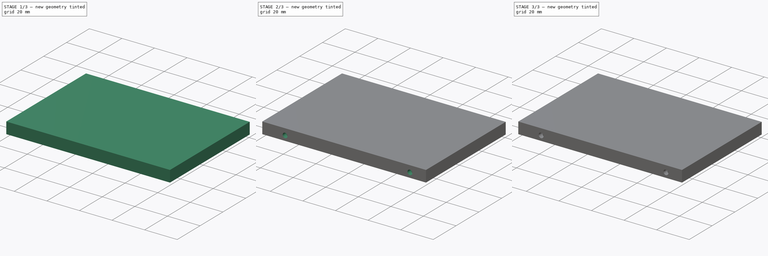
[diagram: build sequence overview — one tinted view per stage of 3, left to right]
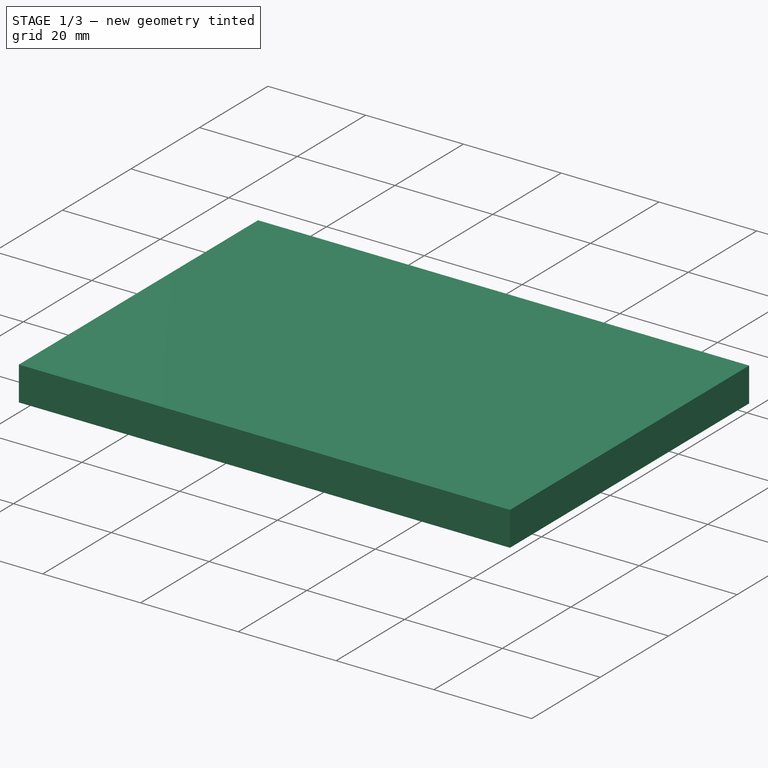
[diagram: stage 1 of 3 — iso view after this stage's code; geometry added in this stage tinted green]
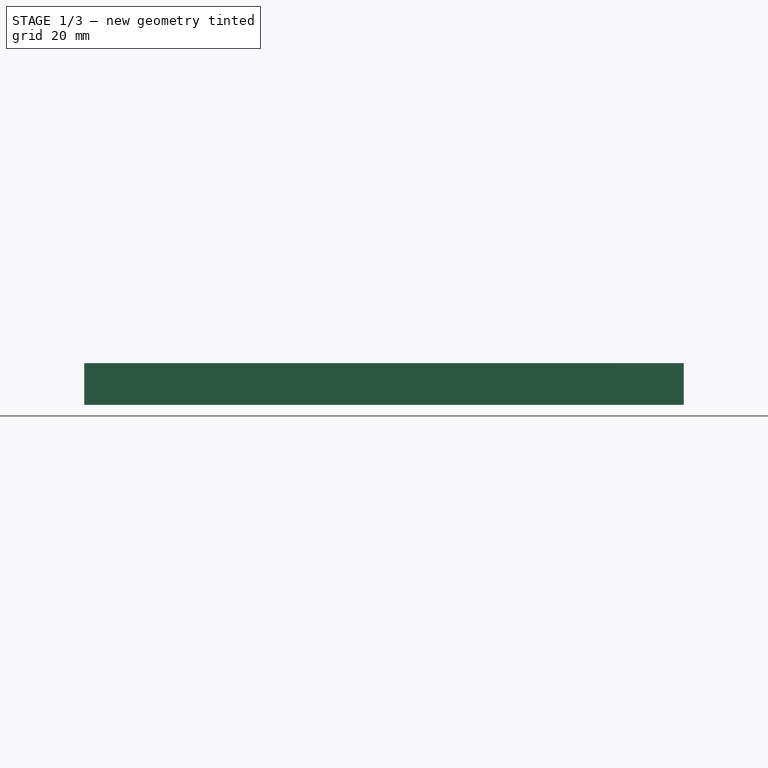
[diagram: stage 1 of 3 — front view after this stage's code; geometry added in this stage tinted green]
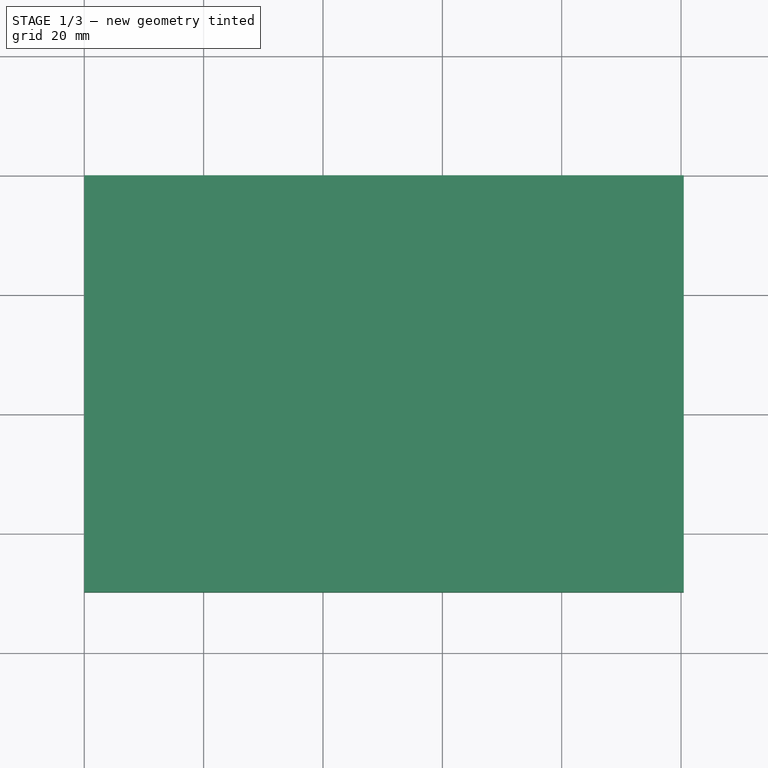
[diagram: stage 1 of 3 — top view after this stage's code; geometry added in this stage tinted green]
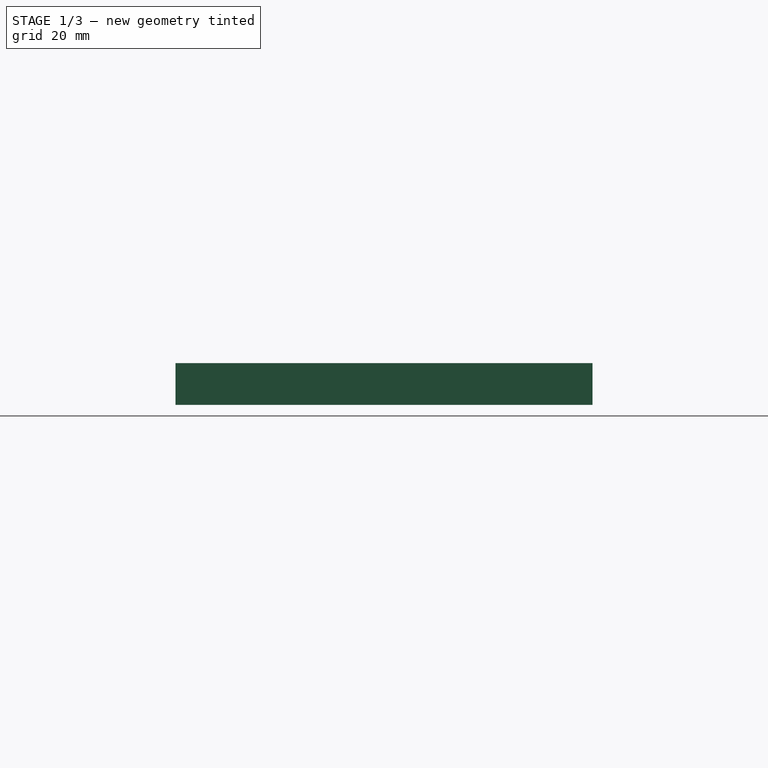
[diagram: stage 1 of 3 — right view after this stage's code; geometry added in this stage tinted green]
FCSTD DOCUMENT  (FreeCAD 0.14R3702 (Git))
Label: 2-5inch-Disk-Drive-7mm-SATA
License: CC-BY 3.0
LicenseURL: http://creativecommons.org/licenses/by/3.0/
objects: Sketcher::SketchObject×6, PartDesign::Pocket×4, PartDesign::Pad×2, PartDesign::Chamfer×1
note: 19 computed .brp shape members not serialized (recipe doc carries the construction recipe); baked Part::Feature solids carry a one-line shape summary decoded from their .brp

FEATURE [Sketcher::SketchObject] Sketch
  sketch-geometry (4):
    g0: LineSegment StartX=0 StartY=0 StartZ=0 EndX=100.45 EndY=0 EndZ=0
    g1: LineSegment StartX=100.45 StartY=0 StartZ=0 EndX=100.45 EndY=-69.85 EndZ=0
    g2: LineSegment StartX=100.45 StartY=-69.85 StartZ=0 EndX=0 EndY=-69.85 EndZ=0
    g3: LineSegment StartX=0 StartY=-69.85 StartZ=0 EndX=0 EndY=0 EndZ=0
  constraints (11):
    c: Coincident(g0,g1)
    c: Coincident(g1,g2)
    c: Coincident(g2,g3)
    c: Coincident(g3,g0)
    c: Horizontal(g0)
    c: Horizontal(g2)
    c: Vertical(g1)
    c: Vertical(g3)
    c: Coincident(g0,g-1)
    c: DistanceY(g-1,g2) = -69.85
    c: DistanceX(g-1,g0) = 100.45
FEATURE [PartDesign::Pad] Pad
  Length = 7
  Length2 = 4.5
  Sketch = -> Sketch
  Type = 0
FEATURE [Sketcher::SketchObject] Sketch001
  Placement = pos=(0,0,0) rot=(1,0,0;3.14159rad)
  Support = -> Pad [Face5]
  sketch-geometry (4):
    g0: Circle CenterX=14 CenterY=65.79 CenterZ=0 NormalX=0 NormalY=0 NormalZ=1 Radius=1.5
    g1: Circle CenterX=90.6 CenterY=65.79 CenterZ=0 NormalX=0 NormalY=0 NormalZ=1 Radius=1.5
    g2: Circle CenterX=14 CenterY=4.07 CenterZ=0 NormalX=0 NormalY=0 NormalZ=1 Radius=1.5
    g3: Circle CenterX=90.6 CenterY=4.07 CenterZ=0 NormalX=0 NormalY=0 NormalZ=1 Radius=1.5
  constraints (12):
    c: Equal(g3,g1)
    c: Equal(g1,g0)
    c: Equal(g0,g2)
    c: DistanceX(g-1,g3) = 90.6  'A51'
    c: DistanceX(g-1,g1) = 90.6  'A51bis'
    c: DistanceY(g0,g2) = -61.72  'A29'
    c: Radius(g0) = 1.5
    c: DistanceY(g3,g1) = 61.72
    c: DistanceY(g-1,g2) = 4.07
    c: DistanceX(g-1,g2) = 14
    c: DistanceX(g-1,g0) = 14
    c: DistanceY(g-1,g3) = 4.07
FEATURE [PartDesign::Pocket] Pocket
  Length = 4.5
  Sketch = -> Sketch001
  Type = 0
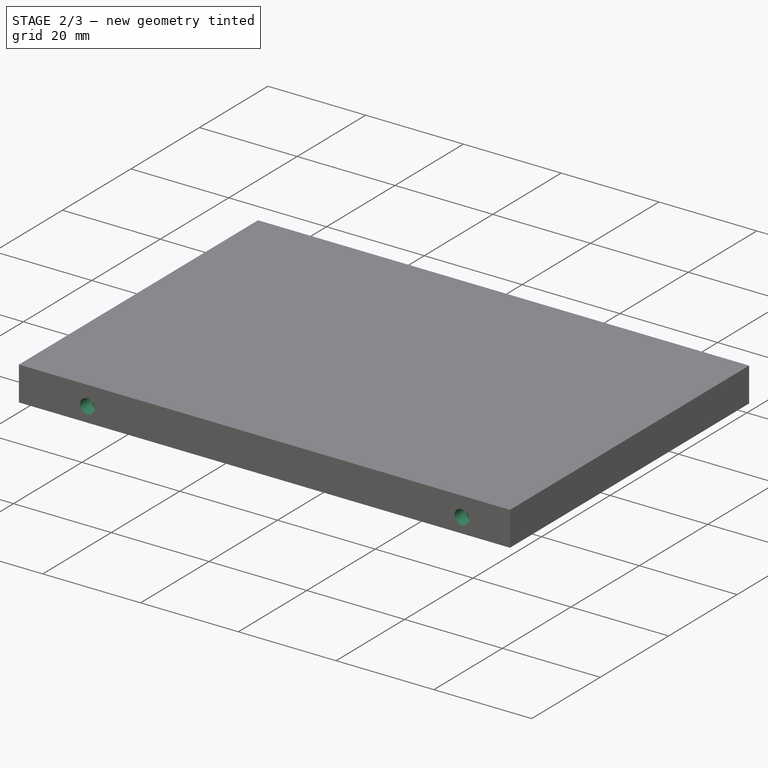
[diagram: stage 2 of 3 — iso view after this stage's code; geometry added in this stage tinted green]
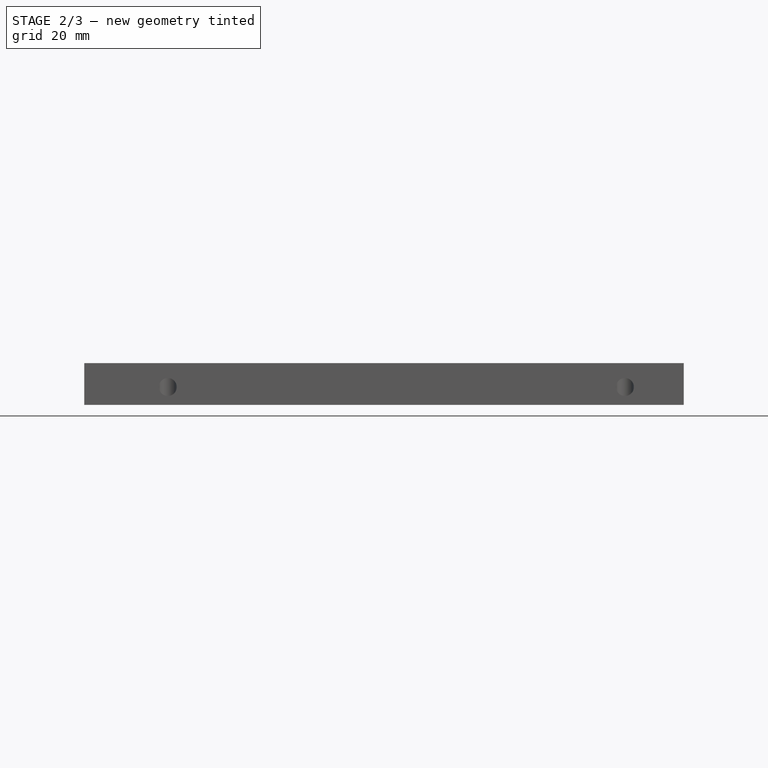
[diagram: stage 2 of 3 — front view after this stage's code; geometry added in this stage tinted green]
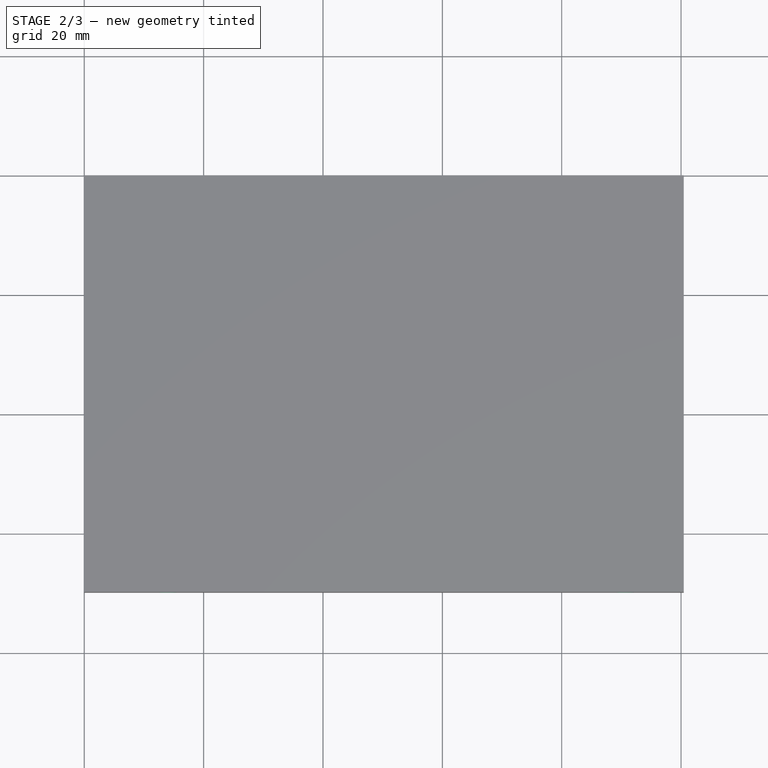
[diagram: stage 2 of 3 — top view after this stage's code; geometry added in this stage tinted green]
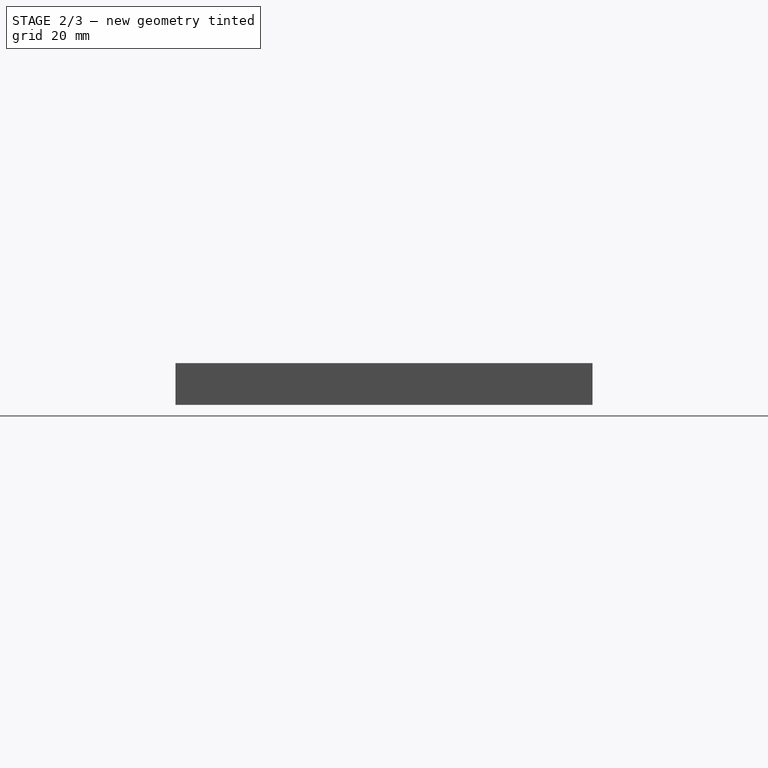
[diagram: stage 2 of 3 — right view after this stage's code; geometry added in this stage tinted green]
FEATURE [Sketcher::SketchObject] Sketch002
  Placement = pos=(0,-69.85,0) rot=(1,0,0;1.5708rad)
  Support = -> Pocket [Face6]
  sketch-geometry (2):
    g0: Circle CenterX=14 CenterY=3 CenterZ=0 NormalX=0 NormalY=0 NormalZ=1 Radius=1.5
    g1: Circle CenterX=90.6 CenterY=3 CenterZ=0 NormalX=0 NormalY=0 NormalZ=1 Radius=1.5
  constraints (6):
    c: Equal(g0,g1)
    c: Radius(g0) = 1.5
    c: DistanceY(g-1,g0) = 3
    c: DistanceY(g-1,g1) = 3
    c: DistanceX(g-1,g0) = 14
    c: DistanceX(g-1,g1) = 90.6
FEATURE [PartDesign::Pocket] Pocket001
  Length = 4.07
  Sketch = -> Sketch002
  Type = 0
FEATURE [Sketcher::SketchObject] Sketch003
  Placement = pos=(0,0,0) rot=(0.57735,-0.57735,-0.57735;2.0944rad)
  Support = -> Pocket001 [Face2]
  sketch-geometry (4):
    g0: LineSegment StartX=11 StartY=0 StartZ=0 EndX=48 EndY=0 EndZ=0
    g1: LineSegment StartX=48 StartY=0 StartZ=0 EndX=48 EndY=4.5 EndZ=0
    g2: LineSegment StartX=48 StartY=4.5 StartZ=0 EndX=11 EndY=4.5 EndZ=0
    g3: LineSegment StartX=11 StartY=4.5 StartZ=0 EndX=11 EndY=0 EndZ=0
  constraints (12):
    c: Coincident(g0,g1)
    c: Coincident(g1,g2)
    c: Coincident(g2,g3)
    c: Coincident(g3,g0)
    c: Horizontal(g0)
    c: Horizontal(g2)
    c: Vertical(g1)
    c: Vertical(g3)
    c: PointOnObject(g0,g-1)
    c: DistanceX(g-1,g0) = 11
    c: DistanceY(g0,g2) = 4.5
    c: DistanceX(g0,g0) = 37
FEATURE [PartDesign::Pocket] Pocket002
  Length = 5
  Sketch = -> Sketch003
  Type = 0
FEATURE [Sketcher::SketchObject] Sketch004
  ExternalGeometry = -> [Pocket002]
  Placement = pos=(5,0,0) rot=(0.57735,-0.57735,-0.57735;2.0944rad)
  Support = -> Pocket002 [Face10]
  sketch-geometry (12):
    g0: LineSegment StartX=13 StartY=3 StartZ=0 EndX=34 EndY=3 EndZ=0
    g1: LineSegment StartX=34 StartY=3 StartZ=0 EndX=34 EndY=1 EndZ=0
    g2: LineSegment StartX=34 StartY=1 StartZ=0 EndX=33 EndY=1 EndZ=0
    g3: LineSegment StartX=33 StartY=1 StartZ=0 EndX=33 EndY=2 EndZ=0
    g4: LineSegment StartX=33 StartY=2 StartZ=0 EndX=13 EndY=2 EndZ=0
    g5: LineSegment StartX=13 StartY=2 StartZ=0 EndX=13 EndY=3 EndZ=0
    g6: LineSegment StartX=36.34 StartY=1 StartZ=0 EndX=36.34 EndY=3 EndZ=0
    g7: LineSegment StartX=36.34 StartY=3 StartZ=0 EndX=46.4 EndY=3 EndZ=0
    g8: LineSegment StartX=46.4 StartY=3 StartZ=0 EndX=46.4 EndY=2 EndZ=0
    g9: LineSegment StartX=46.4 StartY=2 StartZ=0 EndX=37.34 EndY=2 EndZ=0
    g10: LineSegment StartX=37.34 StartY=2 StartZ=0 EndX=37.34 EndY=1 EndZ=0
    g11: LineSegment StartX=37.34 StartY=1 StartZ=0 EndX=36.34 EndY=1 EndZ=0
  constraints (36):
    c: Horizontal(g0)
    c: Coincident(g0,g1)
    c: Vertical(g1)
    c: Coincident(g1,g2)
    c: Horizontal(g2)
    c: Coincident(g2,g3)
    c: Vertical(g3)
    c: Coincident(g3,g4)
    c: Horizontal(g4)
    c: Coincident(g4,g5)
    c: Coincident(g5,g0)
    c: Perpendicular(g5,g4)
    c: Equal(g5,g2)
    c: Vertical(g6)
    c: Coincident(g6,g7)
    c: Horizontal(g7)
    c: Coincident(g7,g8)
    c: Coincident(g8,g9)
    c: Horizontal(g9)
    c: Coincident(g9,g10)
    c: Vertical(g10)
    c: Coincident(g10,g11)
    c: Coincident(g11,g6)
    c: Perpendicular(g11,g10)
    c: Equal(g11,g8)
    c: Perpendicular(g9,g8)
    c: PointOnObject(g6,g0)
    c: PointOnObject(g9,g4)
    c: PointOnObject(g6,g2)
    c: DistanceX(g0,g7) = 33.4
    c: DistanceX(g0,g0) = 21
    c: DistanceY(g4,g0) = 1
    c: DistanceY(g-1,g8) = 2
    c: DistanceX(g-1,g4) = 13
    c: DistanceX(g0,g6) = 2.34
    c: DistanceY(g-1,g2) = 1
FEATURE [PartDesign::Pad] Pad001
  Length = 5
  Length2 = 4.5
  Sketch = -> Sketch004
  Type = 0
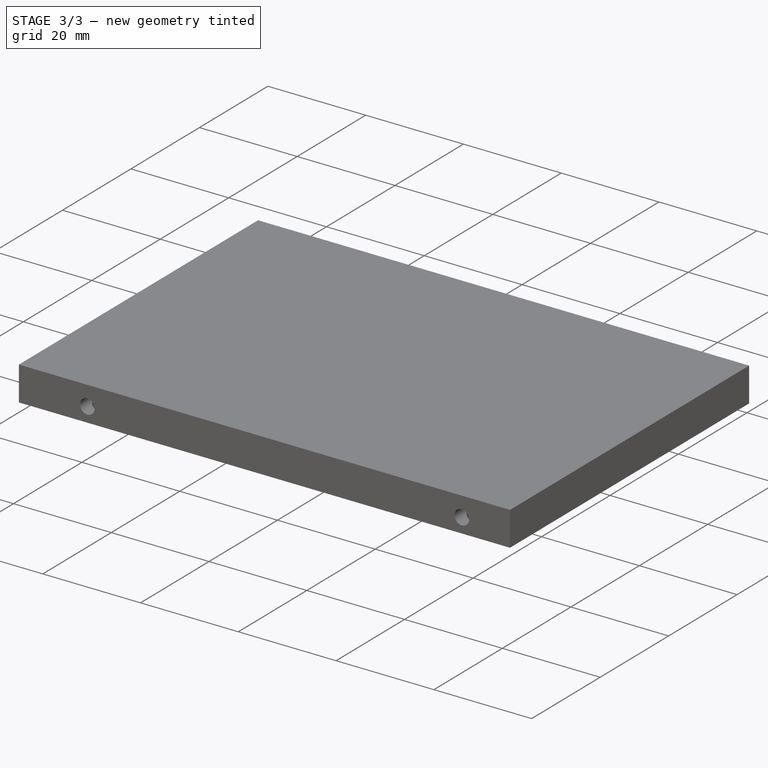
[diagram: stage 3 of 3 — iso view after this stage's code; geometry added in this stage tinted green]
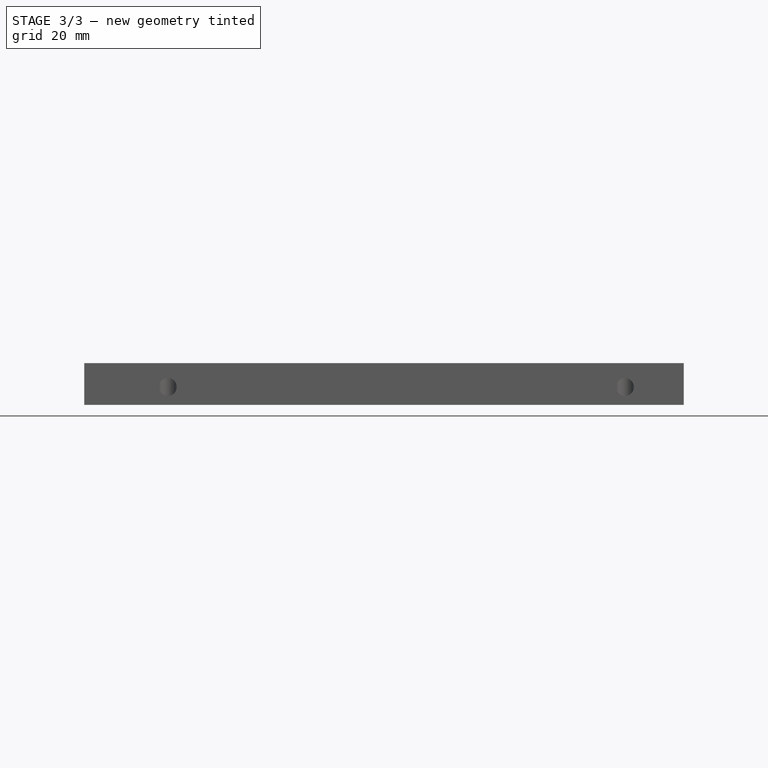
[diagram: stage 3 of 3 — front view after this stage's code; geometry added in this stage tinted green]
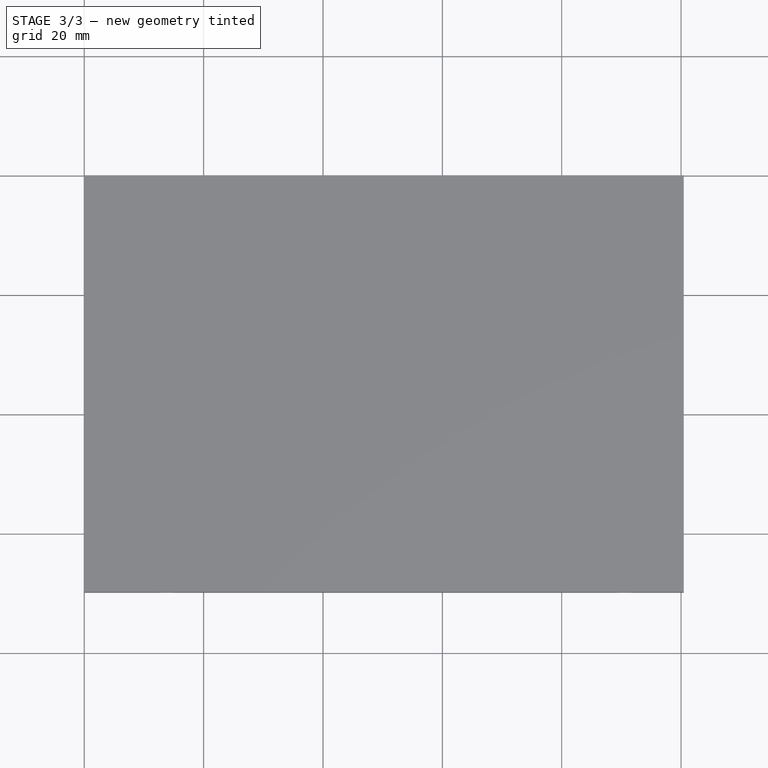
[diagram: stage 3 of 3 — top view after this stage's code; geometry added in this stage tinted green]
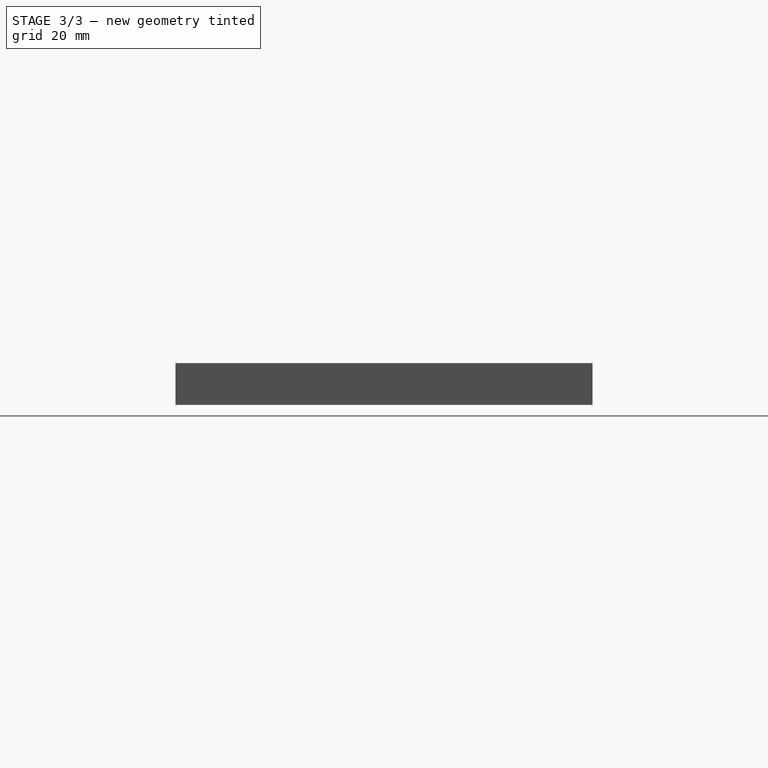
[diagram: stage 3 of 3 — right view after this stage's code; geometry added in this stage tinted green]
FEATURE [PartDesign::Chamfer] Chamfer
  Base = -> Pad001 [Edge98,Edge88,Edge90,Edge92,Edge94,Edge96,Edge80,Edge82,Edge84,Edge86,Edge76,Edge78]
  Size = 0.2
FEATURE [Sketcher::SketchObject] Sketch005
  Placement = pos=(0,0,0) rot=(0,0.707107,0.707107;3.14159rad)
  Support = -> Chamfer [Face25]
  sketch-geometry (2):
    g0: Circle CenterX=-14 CenterY=3 CenterZ=0 NormalX=0 NormalY=0 NormalZ=1 Radius=1.5
    g1: Circle CenterX=-90.6 CenterY=3 CenterZ=0 NormalX=0 NormalY=0 NormalZ=1 Radius=1.5
  constraints (6):
    c: Equal(g1,g0)
    c: DistanceY(g-1,g1) = 3
    c: Radius(g1) = 1.5
    c: DistanceY(g-1,g0) = 3
    c: DistanceX(g-1,g0) = -14
    c: DistanceX(g-1,g1) = -90.6
FEATURE [PartDesign::Pocket] Pocket003
  Length = 5
  Sketch = -> Sketch005
  Type = 0
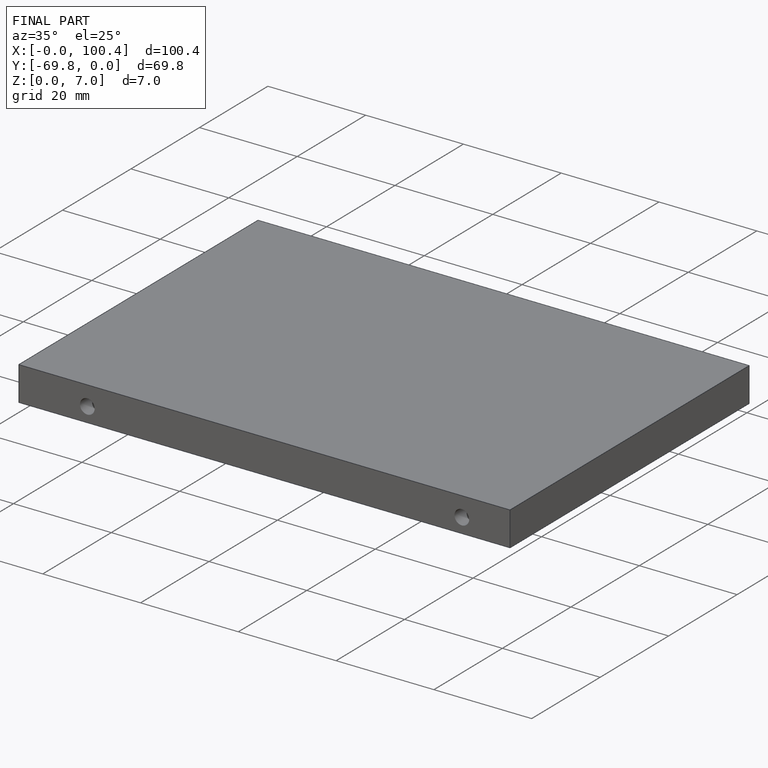
[diagram: finished part — iso view with bounding-box wireframe]
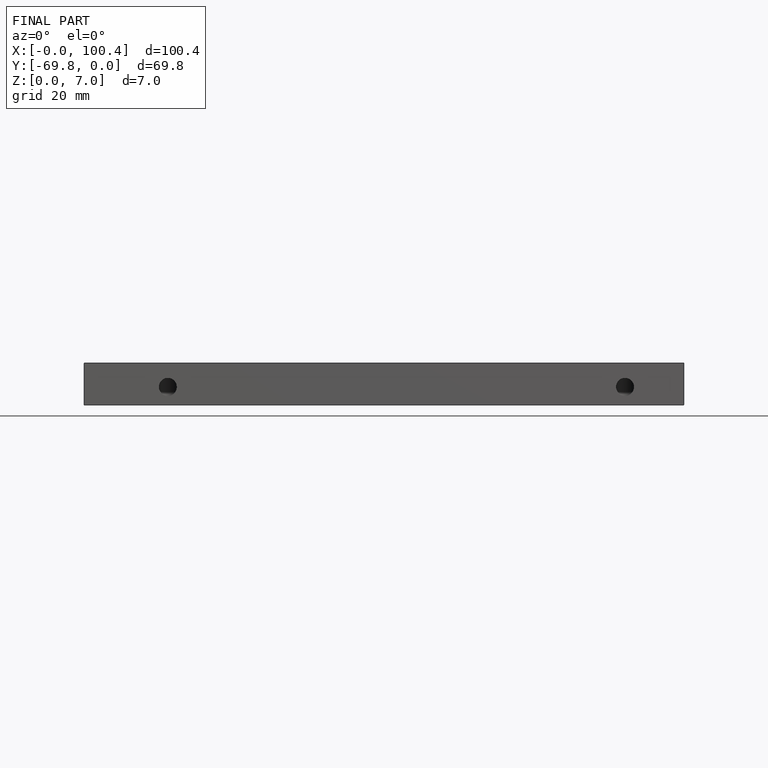
[diagram: finished part — front view with bounding-box wireframe]
